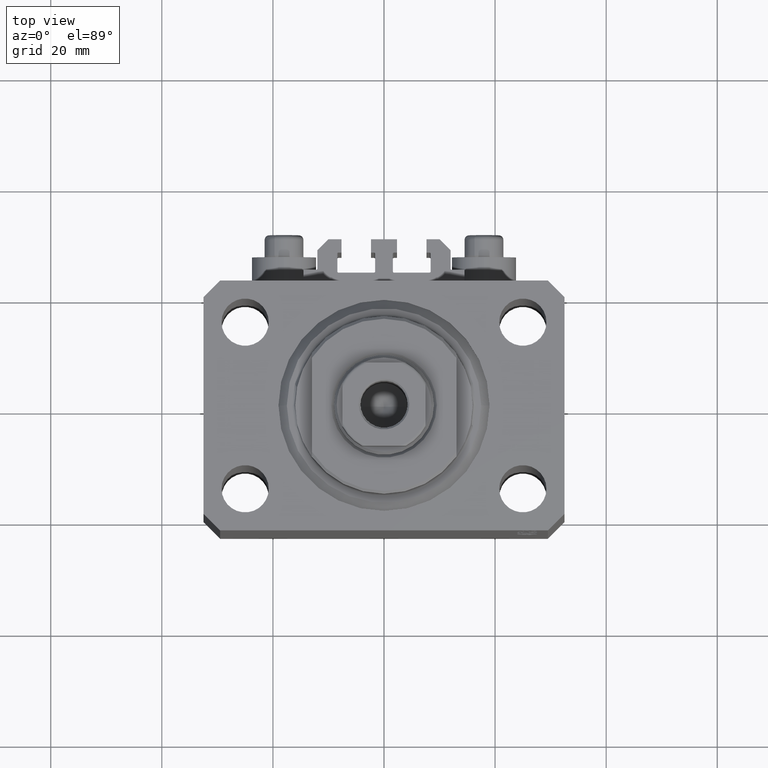
[diagram: clean part render]
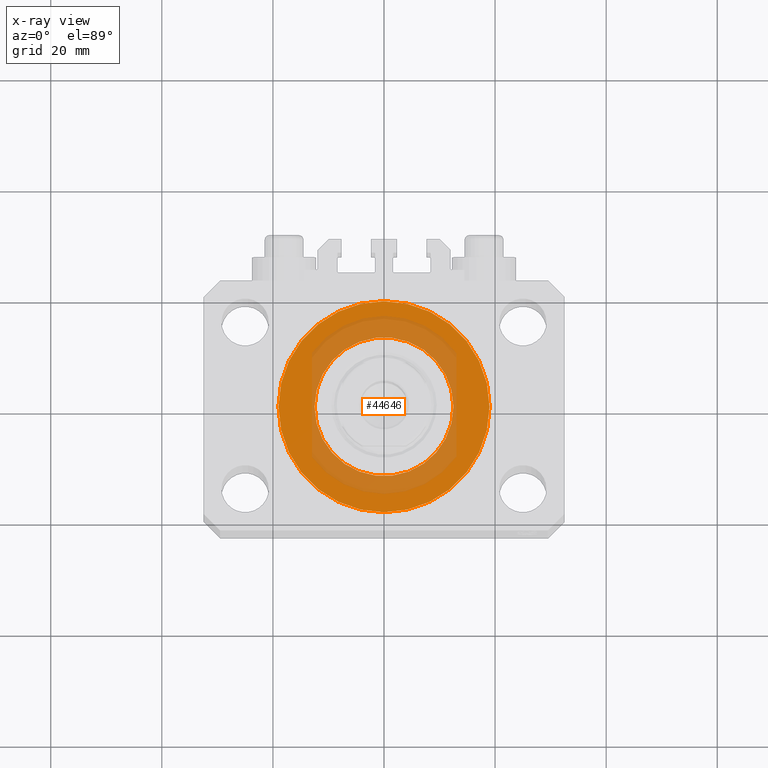
[diagram: x-ray — body ghosted, one internal face saturated and labeled with its STEP entity id]
A machine part, top view, then the same camera in x-ray: the body is ghosted and one INTERNAL B-rep face — a face not visible from any outside direction — is saturated and labeled: STEP entity #44646.
In plain terms, the highlighted planar face has unit normal (0, 0, 1).
Its self-contained STEP definition (entity closure, byte-faithful):
#1352 = DIRECTION ( 'NONE',  ( 0.000000000000000000, 0.000000000000000000, 1.000000000000000000 ) ) ;
#1568 = AXIS2_PLACEMENT_3D ( 'NONE', #4780, #19421, #19885 ) ;
#1750 = DIRECTION ( 'NONE',  ( 1.000000000000000000, 0.000000000000000000, 0.000000000000000000 ) ) ;
#2434 = CIRCLE ( 'NONE', #42246, 19.00000000000000000 ) ;
#3102 = CIRCLE ( 'NONE', #30675, 19.00000000000000000 ) ;
#3741 = AXIS2_PLACEMENT_3D ( 'NONE', #30375, #1352, #18638 ) ;
#3875 = CIRCLE ( 'NONE', #8462, 12.50000000000000000 ) ;
#4707 = FACE_BOUND ( 'NONE', #46685, .T. ) ;
#4780 = CARTESIAN_POINT ( 'NONE',  ( 0.000000000000000000, 0.000000000000000000, -13.99999999999999822 ) ) ;
#5409 = DIRECTION ( 'NONE',  ( 0.000000000000000000, 0.000000000000000000, 1.000000000000000000 ) ) ;
#8129 = EDGE_LOOP ( 'NONE', ( #47286, #39341 ) ) ;
#8462 = AXIS2_PLACEMENT_3D ( 'NONE', #45719, #8540, #38029 ) ;
#8540 = DIRECTION ( 'NONE',  ( 0.000000000000000000, 0.000000000000000000, 1.000000000000000000 ) ) ;
#9175 = CARTESIAN_POINT ( 'NONE',  ( 0.000000000000000000, 0.000000000000000000, -14.00000000000000000 ) ) ;
#14419 = VERTEX_POINT ( 'NONE', #26058 ) ;
#15386 = CIRCLE ( 'NONE', #1568, 12.50000000000000000 ) ;
#18368 = EDGE_CURVE ( 'NONE', #32802, #21213, #3875, .T. ) ;
#18638 = DIRECTION ( 'NONE',  ( 1.000000000000000000, 0.000000000000000000, -0.000000000000000000 ) ) ;
#19395 = ORIENTED_EDGE ( 'NONE', *, *, #18368, .F. ) ;
#19421 = DIRECTION ( 'NONE',  ( 0.000000000000000000, 0.000000000000000000, 1.000000000000000000 ) ) ;
#19710 = ORIENTED_EDGE ( 'NONE', *, *, #45331, .F. ) ;
#19885 = DIRECTION ( 'NONE',  ( 1.000000000000000000, 0.000000000000000000, 0.000000000000000000 ) ) ;
#20060 = DIRECTION ( 'NONE',  ( 1.000000000000000000, 0.000000000000000000, 0.000000000000000000 ) ) ;
#21213 = VERTEX_POINT ( 'NONE', #36152 ) ;
#23187 = PLANE ( 'NONE',  #3741 ) ;
#23663 = CARTESIAN_POINT ( 'NONE',  ( 0.000000000000000000, 0.000000000000000000, -14.00000000000000000 ) ) ;
#26058 = CARTESIAN_POINT ( 'NONE',  ( 19.00000000000000000, 0.000000000000000000, -14.00000000000000000 ) ) ;
#30375 = CARTESIAN_POINT ( 'NONE',  ( 0.000000000000000000, 0.000000000000000000, -14.00000000000000000 ) ) ;
#30675 = AXIS2_PLACEMENT_3D ( 'NONE', #23663, #5409, #20060 ) ;
#32582 = CARTESIAN_POINT ( 'NONE',  ( -19.00000000000000000, 2.326828918379970970E-15, -14.00000000000000000 ) ) ;
#32802 = VERTEX_POINT ( 'NONE', #34736 ) ;
#34736 = CARTESIAN_POINT ( 'NONE',  ( -12.50000000000000000, 1.530808498934191521E-15, -13.99999999999999822 ) ) ;
#36152 = CARTESIAN_POINT ( 'NONE',  ( 12.50000000000000000, 0.000000000000000000, -13.99999999999999822 ) ) ;
#37094 = VERTEX_POINT ( 'NONE', #32582 ) ;
#38029 = DIRECTION ( 'NONE',  ( 1.000000000000000000, 0.000000000000000000, 0.000000000000000000 ) ) ;
#39341 = ORIENTED_EDGE ( 'NONE', *, *, #44910, .T. ) ;
#42246 = AXIS2_PLACEMENT_3D ( 'NONE', #9175, #46124, #1750 ) ;
#44535 = FACE_OUTER_BOUND ( 'NONE', #8129, .T. ) ;
#44646 = ADVANCED_FACE ( 'NONE', ( #4707, #44535 ), #23187, .T. ) ;
#44910 = EDGE_CURVE ( 'NONE', #37094, #14419, #3102, .T. ) ;
#45331 = EDGE_CURVE ( 'NONE', #21213, #32802, #15386, .T. ) ;
#45719 = CARTESIAN_POINT ( 'NONE',  ( 0.000000000000000000, 0.000000000000000000, -13.99999999999999822 ) ) ;
#46124 = DIRECTION ( 'NONE',  ( 0.000000000000000000, 0.000000000000000000, 1.000000000000000000 ) ) ;
#46685 = EDGE_LOOP ( 'NONE', ( #19710, #19395 ) ) ;
#47286 = ORIENTED_EDGE ( 'NONE', *, *, #47393, .T. ) ;
#47393 = EDGE_CURVE ( 'NONE', #14419, #37094, #2434, .T. ) ;